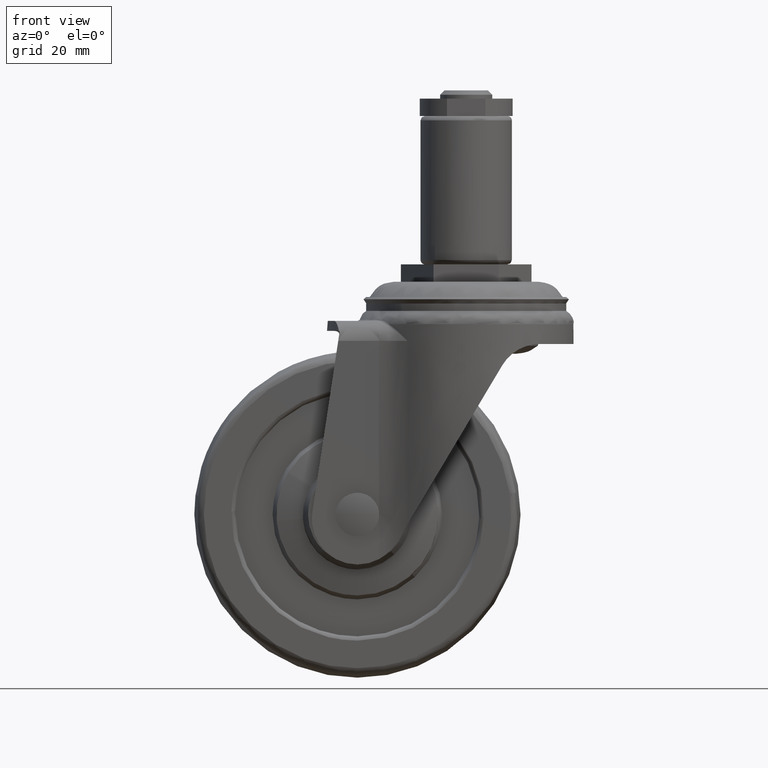
[diagram: clean part render]
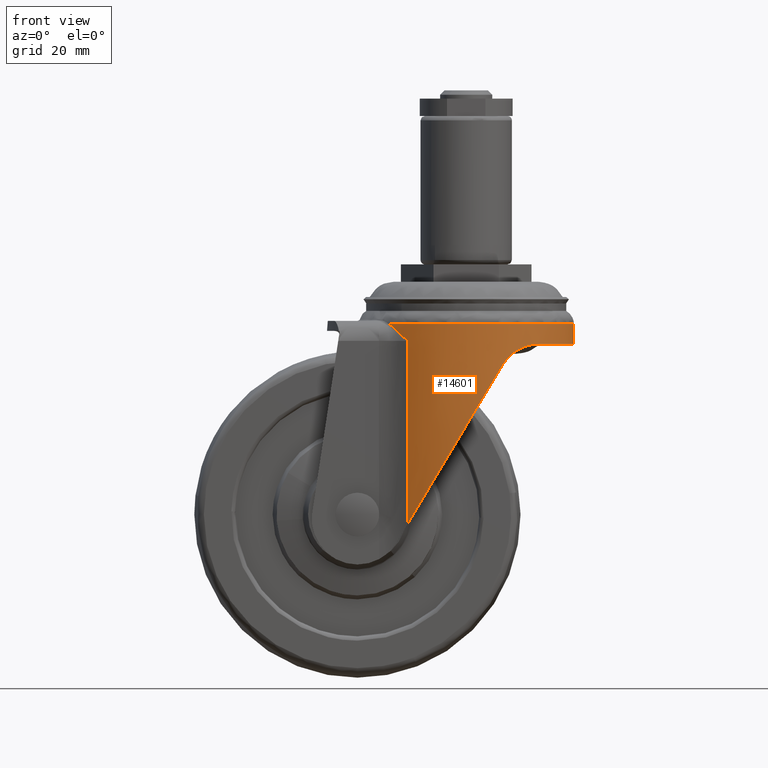
[diagram: same view with one face highlighted and labeled with its STEP entity id]
A machine part, front view. The second image highlights one B-rep face of the part: STEP entity #14601.
In plain terms, the highlighted face is a freeform B-spline surface patch.
Its self-contained STEP definition (entity closure, byte-faithful):
#11855=CARTESIAN_POINT('',(-17.665669830096501,-17.334626021315600,-11.731119819428161));
#11856=VERTEX_POINT('',#11855);
#11870=CARTESIAN_POINT('',(18.324359502074440,-16.636635015306862,-11.731056853155700));
#11871=VERTEX_POINT('',#11870);
#11872=CARTESIAN_POINT('',(18.324359502074440,-16.636635015306862,-11.731056853155700));
#11873=CARTESIAN_POINT('',(17.724662910008231,-17.297174056475409,-11.731057902346290));
#11874=CARTESIAN_POINT('',(16.117383495423390,-18.885931885325409,-11.731060714340961));
#11875=CARTESIAN_POINT('',(13.504079901770810,-20.843076723131428,-11.731065286419140));
#11876=CARTESIAN_POINT('',(10.688937961456620,-22.379671671874799,-11.731070211627600));
#11877=CARTESIAN_POINT('',(8.062604096499799,-23.454173942697409,-11.731074806512821));
#11878=CARTESIAN_POINT('',(5.129419874287133,-24.288227959628831,-11.731079938249531));
#11879=CARTESIAN_POINT('',(2.264997183203916,-24.701927903897889,-11.731084949690150));
#11880=CARTESIAN_POINT('',(-0.885222383959798,-24.793098561377480,-11.731090461148590));
#11881=CARTESIAN_POINT('',(-3.768646763157761,-24.536524083815891,-11.731095505840759));
#11882=CARTESIAN_POINT('',(-7.152681619710078,-23.771465257139379,-11.731101426380480));
#11883=CARTESIAN_POINT('',(-10.556852627596269,-22.506068246880162,-11.731107382154461));
#11884=CARTESIAN_POINT('',(-14.263434092069501,-20.392883175711230,-11.731113867019960));
#11885=CARTESIAN_POINT('',(-16.563095123035691,-18.458530807702569,-11.731117890408150));
#11886=CARTESIAN_POINT('',(-17.665669830096501,-17.334626021315600,-11.731119819428161));
#11887=B_SPLINE_CURVE_WITH_KNOTS('',3,(#11872,#11873,#11874,#11875,#11876,#11877,#11878,#11879,#11880,#11881,#11882,#11883,#11884,#11885,#11886),.UNSPECIFIED.,.F.,.U.,(4,1,1,1,1,1,1,1,1,1,1,1,4),(0.000000084187313,2.676488553244802,6.770004993651874,9.761427130882495,12.280518760403631,15.271917587987570,18.893133954701931,20.939786330155080,24.718420925136279,27.552401336378399,31.331035171467281,35.581992875903453,40.305248353301110),.UNSPECIFIED.);
#11888=EDGE_CURVE('',#11871,#11856,#11887,.T.);
#11890=CARTESIAN_POINT('',(15.552255915073740,19.253247396163669,-11.731061703280609));
#11891=VERTEX_POINT('',#11890);
#11892=CARTESIAN_POINT('',(15.552255915073740,19.253247396163669,-11.731061703280609));
#11893=CARTESIAN_POINT('',(16.572902882728801,18.428854101827209,-11.731059917600080));
#11894=CARTESIAN_POINT('',(18.673813932143801,16.436195561639380,-11.731056241934001));
#11895=CARTESIAN_POINT('',(21.119243115516820,13.130212844506641,-11.731051963508349));
#11896=CARTESIAN_POINT('',(22.900577653586200,9.608448747258036,-11.731048846950729));
#11897=CARTESIAN_POINT('',(23.892171908886670,6.667143234965377,-11.731047112088669));
#11898=CARTESIAN_POINT('',(24.496338213844759,3.841735568672951,-11.731046055053261));
#11899=CARTESIAN_POINT('',(24.834899723579799,0.652477868730276,-11.731045462705330));
#11900=CARTESIAN_POINT('',(24.671177535716058,-3.084840724932167,-11.731045749127500));
#11901=CARTESIAN_POINT('',(23.873250413156740,-6.843373015316890,-11.731047145124570));
#11902=CARTESIAN_POINT('',(22.747935236213991,-9.904135135596315,-11.731049113907980));
#11903=CARTESIAN_POINT('',(21.047468421158499,-13.225763055319460,-11.731052088948450));
#11904=CARTESIAN_POINT('',(19.488735909214270,-15.354579715986700,-11.731054816023830));
#11905=CARTESIAN_POINT('',(18.324359502074440,-16.636635015306862,-11.731056853155700));
#11906=B_SPLINE_CURVE_WITH_KNOTS('',3,(#11892,#11893,#11894,#11895,#11896,#11897,#11898,#11899,#11900,#11901,#11902,#11903,#11904,#11905),.UNSPECIFIED.,.F.,.U.,(4,1,1,1,1,1,1,1,1,1,1,4),(0.000000082840053,3.936021307494379,8.659319254727325,12.280511306869929,15.744235827008920,17.948464183070669,20.939773625884420,25.348193931111609,29.126819719841549,32.433121329693698,35.109641951264393,40.305223891776990),.UNSPECIFIED.);
#11907=EDGE_CURVE('',#11891,#11871,#11906,.T.);
#12082=CARTESIAN_POINT('',(-17.665669830096501,17.334626021315600,-11.731119819428161));
#12083=VERTEX_POINT('',#12082);
#12084=CARTESIAN_POINT('',(-17.665669830096501,17.334626021315600,-11.731119819428161));
#12085=CARTESIAN_POINT('',(-16.867058523698201,18.148549982152741,-11.731118422294850));
#12086=CARTESIAN_POINT('',(-15.192675109139319,19.634121159464510,-11.731115493018621));
#12087=CARTESIAN_POINT('',(-12.621558288779379,21.357150725259491,-11.731110994887260));
#12088=CARTESIAN_POINT('',(-9.740618486952632,22.829127994970730,-11.731105954682450));
#12089=CARTESIAN_POINT('',(-6.912951986807214,23.838183934168161,-11.731101007639580));
#12090=CARTESIAN_POINT('',(-3.751000164024478,24.522625388817708,-11.731095475719160));
#12091=CARTESIAN_POINT('',(-0.243324074122574,24.857482768515709,-11.731089338905401));
#12092=CARTESIAN_POINT('',(3.947518047081304,24.580057376954912,-11.731082006804540));
#12093=CARTESIAN_POINT('',(7.873765936760338,23.563556588639450,-11.731075137555820));
#12094=CARTESIAN_POINT('',(11.813801332673419,21.883625366067822,-11.731068244124280));
#12095=CARTESIAN_POINT('',(14.147965974126670,20.388060763126870,-11.731064160256130));
#12096=CARTESIAN_POINT('',(15.552255915073740,19.253247396163669,-11.731061703280609));
#12097=B_SPLINE_CURVE_WITH_KNOTS('',3,(#12084,#12085,#12086,#12087,#12088,#12089,#12090,#12091,#12092,#12093,#12094,#12095,#12096),.UNSPECIFIED.,.F.,.U.,(4,1,1,1,1,1,1,1,1,1,4),(0.000000067739428,3.420856617653186,6.699233869555538,9.264901735185624,13.113402460607610,15.679071191214650,18.957400628932881,23.661130703579438,28.222315079428679,31.073053289022148,36.489455972006333),.UNSPECIFIED.);
#12098=EDGE_CURVE('',#12083,#11891,#12097,.T.);
#12141=CARTESIAN_POINT('',(-13.492993892261060,20.748581632653050,-15.600000000000000));
#12142=VERTEX_POINT('',#12141);
#12143=CARTESIAN_POINT('',(-13.492993892261040,20.748581632653050,-15.600000000000000));
#12144=CARTESIAN_POINT('',(-13.515402932395370,20.734008908293418,-15.578090623536079));
#12145=CARTESIAN_POINT('',(-13.537982060061941,20.719273517423311,-15.555991653181490));
#12146=CARTESIAN_POINT('',(-13.582958646246791,20.689816202885790,-15.511928422634989));
#12147=CARTESIAN_POINT('',(-13.650346485174509,20.645523619920521,-15.445844616335551));
#12148=CARTESIAN_POINT('',(-13.807060908760340,20.541418222192551,-15.291751590953830));
#12149=CARTESIAN_POINT('',(-13.940541782260199,20.450854913720171,-15.159934068727161));
#12150=CARTESIAN_POINT('',(-14.206509947754720,20.267857047861121,-14.896879647654570));
#12151=CARTESIAN_POINT('',(-14.382498878119071,20.143366364138519,-14.722283365212361));
#12152=CARTESIAN_POINT('',(-14.907505281024550,19.761536447745410,-14.202681506128570));
#12153=CARTESIAN_POINT('',(-15.253578710177321,19.495899228927499,-13.861827673111620));
#12154=CARTESIAN_POINT('',(-15.942728744531269,18.936505848832631,-13.201717468801251));
#12155=CARTESIAN_POINT('',(-16.285788723198181,18.642787344885381,-12.882409909898341));
#12156=CARTESIAN_POINT('',(-16.973416226394729,18.018981077545799,-12.277536384017830));
#12157=CARTESIAN_POINT('',(-17.317949303014849,17.688985552232431,-11.991851808948489));
#12158=CARTESIAN_POINT('',(-17.665669830096501,17.334626021315600,-11.731119819428161));
#12159=B_SPLINE_CURVE_WITH_KNOTS('',3,(#12143,#12144,#12145,#12146,#12147,#12148,#12149,#12150,#12151,#12152,#12153,#12154,#12155,#12156,#12157,#12158),.UNSPECIFIED.,.F.,.U.,(4,2,1,1,2,2,2,2,4),(0.0,0.015625000000000,0.031250000000000,0.062500000000000,0.125000000000000,0.250000000000000,0.500000000000000,0.750000000000000,1.0),.UNSPECIFIED.);
#12160=EDGE_CURVE('',#12142,#12083,#12159,.T.);
#12887=CARTESIAN_POINT('',(-13.492993892261060,-20.748581632653050,-15.600000000000000));
#12888=VERTEX_POINT('',#12887);
#12907=CARTESIAN_POINT('',(-17.665669830096501,-17.334626021315600,-11.731119819428161));
#12908=CARTESIAN_POINT('',(-17.317949303029241,-17.688985552218330,-11.991851808936930));
#12909=CARTESIAN_POINT('',(-16.973416226394860,-18.018981077545678,-12.277536384017710));
#12910=CARTESIAN_POINT('',(-16.285788723198319,-18.642787344885249,-12.882409909898200));
#12911=CARTESIAN_POINT('',(-15.942728744531410,-18.936505848832500,-13.201717468801119));
#12912=CARTESIAN_POINT('',(-15.253578710177440,-19.495899228927410,-13.861827673111510));
#12913=CARTESIAN_POINT('',(-14.907505281024660,-19.761536447745328,-14.202681506128480));
#12914=CARTESIAN_POINT('',(-14.382498878119151,-20.143366364138469,-14.722283365212300));
#12915=CARTESIAN_POINT('',(-14.206509947754791,-20.267857047861089,-14.896879647654520));
#12916=CARTESIAN_POINT('',(-13.940541782260240,-20.450854913720139,-15.159934068727130));
#12917=CARTESIAN_POINT('',(-13.807060908760370,-20.541418222192529,-15.291751590953780));
#12918=CARTESIAN_POINT('',(-13.650346485174550,-20.645523619920510,-15.445844616335579));
#12919=CARTESIAN_POINT('',(-13.582958646246830,-20.689816202885769,-15.511928422635020));
#12920=CARTESIAN_POINT('',(-13.537982060061990,-20.719273517423272,-15.555991653181550));
#12921=CARTESIAN_POINT('',(-13.515402932395491,-20.734008908293330,-15.578090623536250));
#12922=CARTESIAN_POINT('',(-13.492993892261040,-20.748581632653050,-15.600000000000000));
#12923=B_SPLINE_CURVE_WITH_KNOTS('',3,(#12907,#12908,#12909,#12910,#12911,#12912,#12913,#12914,#12915,#12916,#12917,#12918,#12919,#12920,#12921,#12922),.UNSPECIFIED.,.F.,.U.,(4,2,2,2,2,1,1,2,4),(0.0,0.250000000000001,0.500000000000001,0.750000000000001,0.875000000000000,0.937500000000000,0.968750000000000,0.984375000000000,1.0),.UNSPECIFIED.);
#12924=EDGE_CURVE('',#11856,#12888,#12923,.T.);
#14082=CARTESIAN_POINT('',(-13.492993892261040,20.748581632653050,-57.707011123091497));
#14083=VERTEX_POINT('',#14082);
#14084=CARTESIAN_POINT('',(-13.492993892261040,20.748581632653050,-57.707011123091497));
#14085=CARTESIAN_POINT('',(-13.492993892261060,20.748581632653050,-15.600000000000000));
#14086=QUASI_UNIFORM_CURVE('',1,(#14084,#14085),.UNSPECIFIED.,.F.,.U.);
#14087=EDGE_CURVE('',#14083,#12142,#14086,.T.);
#14444=CARTESIAN_POINT('',(-18.237128357365670,16.732375349620892,-58.856410260875187));
#14445=CARTESIAN_POINT('',(-18.237128357365670,16.732375349620892,-10.552911495515801));
#14446=CARTESIAN_POINT('',(-0.910246461111159,35.617396935389010,-58.856410260875194));
#14447=CARTESIAN_POINT('',(-0.910246461111159,35.617396935389010,-10.552911495515801));
#14448=CARTESIAN_POINT('',(17.358571422160171,17.641992358869860,-58.856410260875187));
#14449=CARTESIAN_POINT('',(17.358571422160171,17.641992358869860,-10.552911495515801));
#14450=CARTESIAN_POINT('',(35.627389305431507,-0.333412217649304,-58.856410260875194));
#14451=CARTESIAN_POINT('',(35.627389305431507,-0.333412217649304,-10.552911495515801));
#14452=CARTESIAN_POINT('',(17.025362310225368,-17.963768657928739,-58.856410260875187));
#14453=CARTESIAN_POINT('',(17.025362310225368,-17.963768657928739,-10.552911495515801));
#14454=CARTESIAN_POINT('',(-1.576664684980773,-35.594125098208160,-58.856410260875194));
#14455=CARTESIAN_POINT('',(-1.576664684980773,-35.594125098208160,-10.552911495515801));
#14456=CARTESIAN_POINT('',(-18.547079808694050,-16.388139388786119,-58.856410260875187));
#14457=CARTESIAN_POINT('',(-18.547079808694050,-16.388139388786119,-10.552911495515801));
#14465=(BOUNDED_SURFACE()B_SPLINE_SURFACE(1,2,((#14444,#14446,#14448,#14450,#14452,#14454,#14456),(#14445,#14447,#14449,#14451,#14453,#14455,#14457)),.UNSPECIFIED.,.F.,.F.,.U.)B_SPLINE_SURFACE_WITH_KNOTS((2,2),(3,2,2,3),(0.0,48.303498765359393),(0.0,42.023006804750857,84.046013609501728,126.069020414252610),.UNSPECIFIED.)GEOMETRIC_REPRESENTATION_ITEM()RATIONAL_B_SPLINE_SURFACE(((1.0,0.694658370458997,1.0,0.694658370458997,1.0,0.694658370458997,1.0),(1.0,0.694658370458997,1.0,0.694658370458997,1.0,0.694658370458997,1.0)))REPRESENTATION_ITEM('')SURFACE());
#14466=ORIENTED_EDGE('',*,*,#14087,.T.);
#14467=ORIENTED_EDGE('',*,*,#12160,.T.);
#14468=ORIENTED_EDGE('',*,*,#12098,.T.);
#14469=ORIENTED_EDGE('',*,*,#11907,.T.);
#14470=ORIENTED_EDGE('',*,*,#11888,.T.);
#14471=ORIENTED_EDGE('',*,*,#12924,.T.);
#14472=CARTESIAN_POINT('',(-13.492993892261040,-20.748581632653050,-57.707011123091497));
#14473=VERTEX_POINT('',#14472);
#14474=CARTESIAN_POINT('',(-13.492993892261060,-20.748581632653050,-15.600000000000000));
#14475=CARTESIAN_POINT('',(-13.492993892261040,-20.748581632653050,-57.707011123091497));
#14476=QUASI_UNIFORM_CURVE('',1,(#14474,#14475),.UNSPECIFIED.,.F.,.U.);
#14477=EDGE_CURVE('',#12888,#14473,#14476,.T.);
#14478=ORIENTED_EDGE('',*,*,#14477,.T.);
#14479=CARTESIAN_POINT('',(8.307044776595800,-23.314250170599301,-21.175592866254700));
#14480=VERTEX_POINT('',#14479);
#14481=CARTESIAN_POINT('',(8.307044776595806,-23.314250170599301,-21.175592866254711));
#14482=CARTESIAN_POINT('',(-3.227655433410936,-27.424188750244767,-40.504868572584272));
#14483=CARTESIAN_POINT('',(-13.492993892261030,-20.748581632653060,-57.707011123091483));
#14491=(BOUNDED_CURVE()B_SPLINE_CURVE(2,(#14481,#14482,#14483),.UNSPECIFIED.,.F.,.U.)CURVE()GEOMETRIC_REPRESENTATION_ITEM()QUASI_UNIFORM_CURVE()RATIONAL_B_SPLINE_CURVE((1.0,0.896301885122671,1.0))REPRESENTATION_ITEM(''));
#14492=EDGE_CURVE('',#14480,#14473,#14491,.T.);
#14493=ORIENTED_EDGE('',*,*,#14492,.F.);
#14494=CARTESIAN_POINT('',(16.894269843855700,-18.087111773218052,-16.300000000000001));
#14495=VERTEX_POINT('',#14494);
#14496=CARTESIAN_POINT('',(8.307044776595800,-23.314250170599301,-21.175592866254700));
#14497=CARTESIAN_POINT('',(8.392432921460404,-23.283825438959880,-21.032503710518359));
#14498=CARTESIAN_POINT('',(8.481390256783017,-23.251601546798160,-20.891556590654591));
#14499=CARTESIAN_POINT('',(8.620178208749392,-23.200348378239589,-20.683386737687069));
#14500=CARTESIAN_POINT('',(8.667333195834063,-23.182777413033431,-20.614538830072821));
#14501=CARTESIAN_POINT('',(8.763431679789321,-23.146621428092299,-20.477936305573980));
#14502=CARTESIAN_POINT('',(8.812446275455022,-23.128009048118251,-20.410086775296939));
#14503=CARTESIAN_POINT('',(9.061093230038642,-23.032653201087228,-20.074822955190282));
#14504=CARTESIAN_POINT('',(9.270631535219817,-22.949353503323241,-19.820302289890272));
#14505=CARTESIAN_POINT('',(9.928238259347605,-22.676340365686631,-19.095845774676100));
#14506=CARTESIAN_POINT('',(10.405135964593960,-22.463695500249351,-18.664772984297858));
#14507=CARTESIAN_POINT('',(10.979446488274020,-22.181470839590951,-18.236429537511629));
#14508=CARTESIAN_POINT('',(11.043808652501220,-22.149499578877439,-18.189616067220161));
#14509=CARTESIAN_POINT('',(11.172845512603040,-22.084690268944630,-18.098077891397189));
#14510=CARTESIAN_POINT('',(11.367135768199990,-21.986046588172730,-17.963702042197522));
#14511=CARTESIAN_POINT('',(11.563501399673591,-21.883064775047600,-17.837928754129219));
#14512=CARTESIAN_POINT('',(11.958685127609421,-21.671176699204182,-17.597409463413140));
#14513=CARTESIAN_POINT('',(12.225403811773100,-21.522022130335120,-17.451749246737769));
#14514=CARTESIAN_POINT('',(12.763899587651350,-21.207091237307878,-17.187926240866961));
#14515=CARTESIAN_POINT('',(13.035679544139320,-21.041315249891170,-17.069768497563292));
#14516=CARTESIAN_POINT('',(13.446193267231489,-20.779477489997930,-16.912124883833009));
#14517=CARTESIAN_POINT('',(13.583783027726620,-20.689812178457281,-16.862762055568140));
#14518=CARTESIAN_POINT('',(13.857571520921439,-20.507441537817350,-16.771136281614741));
#14519=CARTESIAN_POINT('',(13.993943067641650,-20.414634199396868,-16.728792423744171));
#14520=CARTESIAN_POINT('',(14.672974299550640,-19.942463963292990,-16.533460566636322));
#14521=CARTESIAN_POINT('',(15.207116131863531,-19.538736108843100,-16.429314038055519));
#14522=CARTESIAN_POINT('',(15.860525498977969,-19.000854272222998,-16.352708486658521));
#14523=CARTESIAN_POINT('',(15.990496011763250,-18.891614562027211,-16.340084581970910));
#14524=CARTESIAN_POINT('',(16.248947638233439,-18.669781040303189,-16.320006049950649));
#14525=CARTESIAN_POINT('',(16.377560282872590,-18.557061591245169,-16.312554567110379));
#14526=CARTESIAN_POINT('',(16.635977720813699,-18.325810755833949,-16.302474485913720));
#14527=CARTESIAN_POINT('',(16.765894044656260,-18.207021822546690,-16.299999690961819));
#14528=CARTESIAN_POINT('',(16.894269843855700,-18.087111773218052,-16.300000000000001));
#14529=B_SPLINE_CURVE_WITH_KNOTS('',3,(#14496,#14497,#14498,#14499,#14500,#14501,#14502,#14503,#14504,#14505,#14506,#14507,#14508,#14509,#14510,#14511,#14512,#14513,#14514,#14515,#14516,#14517,#14518,#14519,#14520,#14521,#14522,#14523,#14524,#14525,#14526,#14527,#14528),.UNSPECIFIED.,.F.,.U.,(4,2,2,2,2,2,2,1,2,2,2,2,2,2,2,2,4),(0.0,0.007812500000000,0.011718750000000,0.015625000000001,0.031250000000001,0.062500000000001,0.066406250000001,0.070312500000001,0.078125000000001,0.093750000000001,0.109375000000001,0.117187500000001,0.125000000000001,0.156250000000001,0.164062500000001,0.171875000000001,0.179967743816418),.UNSPECIFIED.);
#14530=EDGE_CURVE('',#14480,#14495,#14529,.T.);
#14531=ORIENTED_EDGE('',*,*,#14530,.T.);
#14532=CARTESIAN_POINT('',(16.894269843855700,18.087111773218052,-16.300000000000001));
#14533=VERTEX_POINT('',#14532);
#14534=CARTESIAN_POINT('',(16.894269843855700,18.087111773218052,-16.300000000000001));
#14535=CARTESIAN_POINT('',(18.052361543490751,17.005612888718129,-16.299999999999962));
#14536=CARTESIAN_POINT('',(19.808441630245490,15.016885250790621,-16.300000000000090));
#14537=CARTESIAN_POINT('',(21.730448935951021,11.974054993827190,-16.299999999999901));
#14538=CARTESIAN_POINT('',(23.087592375417991,9.104424368961912,-16.300000000000001));
#14539=CARTESIAN_POINT('',(23.969922499235029,6.384702756458355,-16.300000000000189));
#14540=CARTESIAN_POINT('',(24.543248811122002,3.533837962158309,-16.299999999999780));
#14541=CARTESIAN_POINT('',(24.783599632441572,0.952149092533863,-16.300000000000299));
#14542=CARTESIAN_POINT('',(24.722710426150211,-2.220514618652445,-16.299999999999891));
#14543=CARTESIAN_POINT('',(24.238280456105599,-5.416217875864833,-16.300000000000200));
#14544=CARTESIAN_POINT('',(23.301055059038891,-8.505726706213402,-16.299999999999649));
#14545=CARTESIAN_POINT('',(21.931707581073209,-11.658951360091670,-16.300000000000530));
#14546=CARTESIAN_POINT('',(19.923051082000281,-14.907387967130919,-16.299999999999191));
#14547=CARTESIAN_POINT('',(17.936512224172748,-17.113746412638960,-16.300000000000779));
#14548=CARTESIAN_POINT('',(16.894269843855700,-18.087111773218052,-16.300000000000001));
#14549=B_SPLINE_CURVE_WITH_KNOTS('',3,(#14534,#14535,#14536,#14537,#14538,#14539,#14540,#14541,#14542,#14543,#14544,#14545,#14546,#14547,#14548),.UNSPECIFIED.,.F.,.U.,(4,1,1,1,1,1,1,1,1,1,1,1,4),(0.000000081097994,4.753638056112152,7.922734114645081,10.774928220081700,14.260958556517220,16.479326587444611,19.489993801098159,22.025172256455040,25.986579428526451,29.155680224391929,31.690964355620451,36.286186005452556,40.564432178781828),.UNSPECIFIED.);
#14550=EDGE_CURVE('',#14533,#14495,#14549,.T.);
#14551=ORIENTED_EDGE('',*,*,#14550,.F.);
#14552=CARTESIAN_POINT('',(8.307044776595800,23.314250170599301,-21.175592866254700));
#14553=VERTEX_POINT('',#14552);
#14554=CARTESIAN_POINT('',(16.894269843855700,18.087111773218052,-16.300000000000001));
#14555=CARTESIAN_POINT('',(16.508318558407421,18.447618288754249,-16.299963217718869));
#14556=CARTESIAN_POINT('',(16.112304715718569,18.794391323396631,-16.322270125184279));
#14557=CARTESIAN_POINT('',(15.447084583586600,19.340641552655839,-16.401836733652321));
#14558=CARTESIAN_POINT('',(15.183589686077710,19.548170328004112,-16.443649861162250));
#14559=CARTESIAN_POINT('',(14.782550225949100,19.851056484011892,-16.524575137586741));
#14560=CARTESIAN_POINT('',(14.647904226907359,19.950616953128950,-16.554589048273119));
#14561=CARTESIAN_POINT('',(14.444504650355951,20.097848594072119,-16.604473508103752));
#14562=CARTESIAN_POINT('',(14.376468123952071,20.146571375975238,-16.621914639342741));
#14563=CARTESIAN_POINT('',(14.240566378612360,20.242862093950219,-16.658292341679751));
#14564=CARTESIAN_POINT('',(14.172621960963539,20.290487753321319,-16.677247763711438));
#14565=CARTESIAN_POINT('',(13.561252952348180,20.714491705458290,-16.854842514362240));
#14566=CARTESIAN_POINT('',(13.018654161549311,21.058536555349150,-17.062164579552480));
#14567=CARTESIAN_POINT('',(12.213018822357130,21.529038147933541,-17.458322207270989));
#14568=CARTESIAN_POINT('',(11.945866647733309,21.678267407636788,-17.604622303468680));
#14569=CARTESIAN_POINT('',(11.614590219667800,21.855608905559130,-17.807010927025232));
#14570=CARTESIAN_POINT('',(11.548374324047289,21.890666175793591,-17.848528777247900));
#14571=CARTESIAN_POINT('',(11.416916979526590,21.959513741822249,-17.933126234404160));
#14572=CARTESIAN_POINT('',(11.221068370588410,22.060954658839432,-18.062431417092370));
#14573=CARTESIAN_POINT('',(11.029301191352801,22.157053034994199,-18.198964770582791));
#14574=CARTESIAN_POINT('',(10.399489540053191,22.466119320913538,-18.670207970242551));
#14575=CARTESIAN_POINT('',(9.925533978289932,22.677516275899158,-19.098483426159849));
#14576=CARTESIAN_POINT('',(9.377915375439221,22.904799455915789,-19.702201928060710));
#14577=CARTESIAN_POINT('',(9.270648389981012,22.948396850398218,-19.826387059395451));
#14578=CARTESIAN_POINT('',(9.060887101971929,23.032025525342739,-20.081849894847071));
#14579=CARTESIAN_POINT('',(8.958189360951900,23.072130728626810,-20.213439627641890));
#14580=CARTESIAN_POINT('',(8.661350028851397,23.185925177401060,-20.614095418587819));
#14581=CARTESIAN_POINT('',(8.477258843449743,23.253600982946381,-20.890357051623258));
#14582=CARTESIAN_POINT('',(8.307044776595800,23.314250170599301,-21.175592866254700));
#14583=B_SPLINE_CURVE_WITH_KNOTS('',3,(#14554,#14555,#14556,#14557,#14558,#14559,#14560,#14561,#14562,#14563,#14564,#14565,#14566,#14567,#14568,#14569,#14570,#14571,#14572,#14573,#14574,#14575,#14576,#14577,#14578,#14579,#14580,#14581,#14582),.UNSPECIFIED.,.F.,.U.,(4,2,2,2,2,2,2,2,2,1,2,2,2,2,4),(0.819326034601838,0.843750000000002,0.859375000000002,0.867187500000002,0.871093750000002,0.875000000000002,0.906250000000002,0.921875000000002,0.925781250000002,0.929687500000002,0.937500000000001,0.968750000000001,0.976562500000000,0.984375000000000,1.0),.UNSPECIFIED.);
#14584=EDGE_CURVE('',#14533,#14553,#14583,.T.);
#14585=ORIENTED_EDGE('',*,*,#14584,.T.);
#14586=CARTESIAN_POINT('',(-13.492993892261040,20.748581632653050,-57.707011123091512));
#14587=CARTESIAN_POINT('',(-3.227655433410953,27.424188750244756,-40.504868572584307));
#14588=CARTESIAN_POINT('',(8.307044776595800,23.314250170599301,-21.175592866254721));
#14596=(BOUNDED_CURVE()B_SPLINE_CURVE(2,(#14586,#14587,#14588),.UNSPECIFIED.,.F.,.U.)CURVE()GEOMETRIC_REPRESENTATION_ITEM()QUASI_UNIFORM_CURVE()RATIONAL_B_SPLINE_CURVE((1.0,0.896301885122672,1.0))REPRESENTATION_ITEM(''));
#14597=EDGE_CURVE('',#14083,#14553,#14596,.T.);
#14598=ORIENTED_EDGE('',*,*,#14597,.F.);
#14599=EDGE_LOOP('',(#14466,#14467,#14468,#14469,#14470,#14471,#14478,#14493,#14531,#14551,#14585,#14598));
#14600=FACE_OUTER_BOUND('',#14599,.T.);
#14601=ADVANCED_FACE('',(#14600),#14465,.T.);